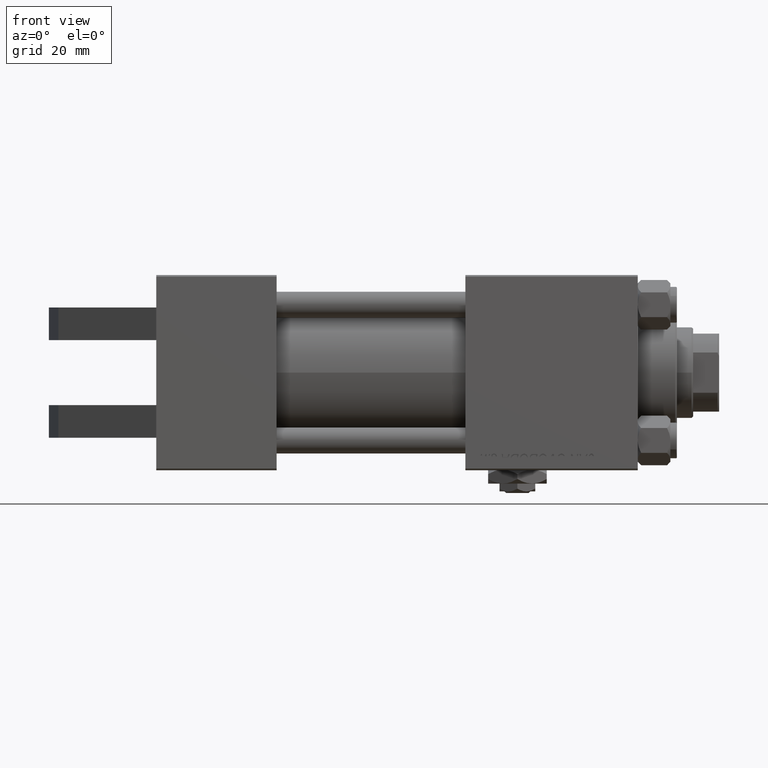
[diagram: clean part render]
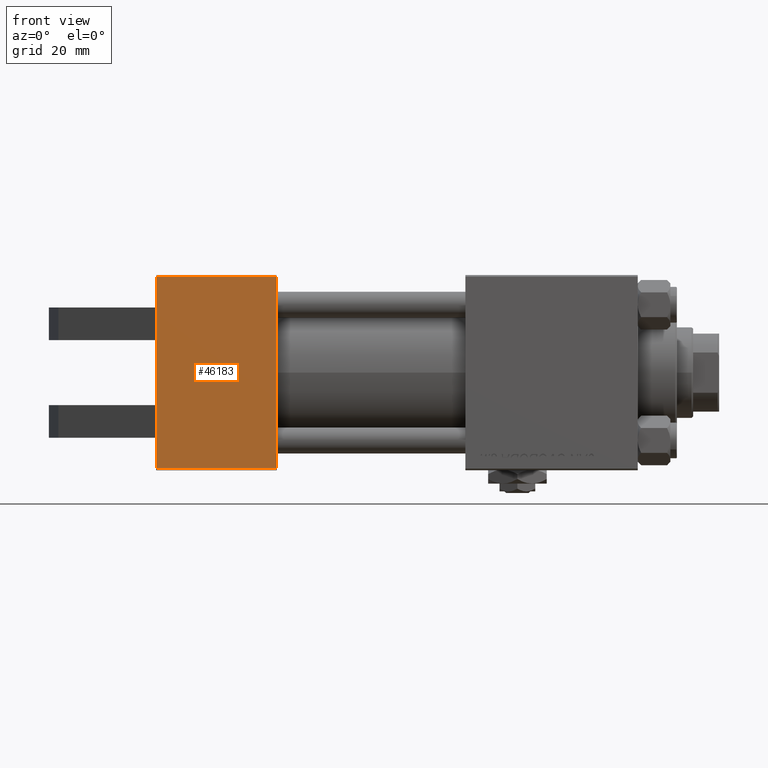
[diagram: same view with one face highlighted and labeled with its STEP entity id]
A machine part, front view. The second image highlights one B-rep face of the part: STEP entity #46183.
In plain terms, the highlighted planar face has unit normal (0, -1, -0).
Its self-contained STEP definition (entity closure, byte-faithful):
#1102 = LINE ( 'NONE', #40673, #13595 ) ;
#1340 = CARTESIAN_POINT ( 'NONE',  ( 37.00000000000000000, 29.99999999999999289, -30.00000000000000000 ) ) ;
#1368 = VECTOR ( 'NONE', #39622, 1000.000000000000000 ) ;
#2062 = ORIENTED_EDGE ( 'NONE', *, *, #39763, .F. ) ;
#2558 = CARTESIAN_POINT ( 'NONE',  ( 0.000000000000000000, 20.00000000000000000, -30.00000000000000711 ) ) ;
#2603 = EDGE_LOOP ( 'NONE', ( #33971, #21463, #24860, #4278, #2062, #28561, #47826, #8935 ) ) ;
#3813 = VECTOR ( 'NONE', #45174, 1000.000000000000000 ) ;
#4278 = ORIENTED_EDGE ( 'NONE', *, *, #23025, .T. ) ;
#5631 = CARTESIAN_POINT ( 'NONE',  ( 0.000000000000000000, 29.49999999999997868, -30.00000000000000000 ) ) ;
#6598 = LINE ( 'NONE', #38083, #24812 ) ;
#7526 = EDGE_CURVE ( 'NONE', #49046, #40208, #24978, .T. ) ;
#7794 = CARTESIAN_POINT ( 'NONE',  ( 37.00000000000000000, 29.99999999999999289, -30.00000000000000000 ) ) ;
#8449 = VERTEX_POINT ( 'NONE', #49749 ) ;
#8935 = ORIENTED_EDGE ( 'NONE', *, *, #7526, .F. ) ;
#11665 = AXIS2_PLACEMENT_3D ( 'NONE', #7794, #23653, #30943 ) ;
#12773 = VERTEX_POINT ( 'NONE', #5631 ) ;
#13446 = LINE ( 'NONE', #29575, #3813 ) ;
#13595 = VECTOR ( 'NONE', #16970, 1000.000000000000000 ) ;
#16970 = DIRECTION ( 'NONE',  ( 1.000000000000000000, 0.000000000000000000, 0.000000000000000000 ) ) ;
#17237 = VERTEX_POINT ( 'NONE', #41853 ) ;
#18166 = DIRECTION ( 'NONE',  ( 0.000000000000000000, -1.000000000000000000, -1.156482317317871725E-16 ) ) ;
#19559 = CARTESIAN_POINT ( 'NONE',  ( 0.000000000000000000, 29.99999999999999289, -30.00000000000000000 ) ) ;
#21066 = CARTESIAN_POINT ( 'NONE',  ( 0.000000000000000000, 20.00000000000000000, -30.00000000000000711 ) ) ;
#21375 = CARTESIAN_POINT ( 'NONE',  ( 37.00000000000000000, 29.49999999999997868, -30.00000000000000000 ) ) ;
#21463 = ORIENTED_EDGE ( 'NONE', *, *, #23173, .T. ) ;
#22067 = CARTESIAN_POINT ( 'NONE',  ( 0.000000000000000000, 29.99999999999999289, -30.00000000000000000 ) ) ;
#23025 = EDGE_CURVE ( 'NONE', #8449, #23213, #47451, .T. ) ;
#23173 = EDGE_CURVE ( 'NONE', #12773, #38551, #1102, .T. ) ;
#23213 = VERTEX_POINT ( 'NONE', #25818 ) ;
#23469 = LINE ( 'NONE', #19559, #1368 ) ;
#23653 = DIRECTION ( 'NONE',  ( 0.000000000000000000, 1.156482317317871725E-16, -1.000000000000000000 ) ) ;
#24290 = CARTESIAN_POINT ( 'NONE',  ( 0.000000000000000000, -29.50000000000001066, -30.00000000000000711 ) ) ;
#24547 = CARTESIAN_POINT ( 'NONE',  ( 0.000000000000000000, -10.00000000000000000, -30.00000000000000711 ) ) ;
#24760 = EDGE_CURVE ( 'NONE', #38551, #8449, #48700, .T. ) ;
#24812 = VECTOR ( 'NONE', #26632, 1000.000000000000000 ) ;
#24860 = ORIENTED_EDGE ( 'NONE', *, *, #24760, .T. ) ;
#24978 = LINE ( 'NONE', #21066, #44414 ) ;
#25818 = CARTESIAN_POINT ( 'NONE',  ( 0.000000000000000000, -29.50000000000000000, -30.00000000000000711 ) ) ;
#26632 = DIRECTION ( 'NONE',  ( -0.000000000000000000, 1.000000000000000000, -0.000000000000000000 ) ) ;
#28561 = ORIENTED_EDGE ( 'NONE', *, *, #38332, .T. ) ;
#29116 = EDGE_CURVE ( 'NONE', #40208, #49495, #23469, .T. ) ;
#29467 = VECTOR ( 'NONE', #18166, 1000.000000000000000 ) ;
#29575 = CARTESIAN_POINT ( 'NONE',  ( 0.000000000000000000, 29.99999999999999289, -30.00000000000000000 ) ) ;
#30148 = DIRECTION ( 'NONE',  ( 0.000000000000000000, -1.000000000000000000, -1.156482317317871725E-16 ) ) ;
#30943 = DIRECTION ( 'NONE',  ( 0.000000000000000000, 1.000000000000000000, 1.156482317317871725E-16 ) ) ;
#33046 = LINE ( 'NONE', #22067, #44781 ) ;
#33971 = ORIENTED_EDGE ( 'NONE', *, *, #49149, .F. ) ;
#35381 = FACE_OUTER_BOUND ( 'NONE', #2603, .T. ) ;
#35515 = DIRECTION ( 'NONE',  ( -1.000000000000000000, 0.000000000000000000, 0.000000000000000000 ) ) ;
#38083 = CARTESIAN_POINT ( 'NONE',  ( 0.000000000000000000, -20.00000000000000000, -30.00000000000000711 ) ) ;
#38332 = EDGE_CURVE ( 'NONE', #17237, #49495, #6598, .T. ) ;
#38551 = VERTEX_POINT ( 'NONE', #21375 ) ;
#39622 = DIRECTION ( 'NONE',  ( 0.000000000000000000, -1.000000000000000000, -1.156482317317871725E-16 ) ) ;
#39763 = EDGE_CURVE ( 'NONE', #17237, #23213, #33046, .T. ) ;
#40208 = VERTEX_POINT ( 'NONE', #40904 ) ;
#40673 = CARTESIAN_POINT ( 'NONE',  ( 37.00000000000000000, 29.49999999999997868, -30.00000000000000000 ) ) ;
#40849 = DIRECTION ( 'NONE',  ( -0.000000000000000000, -1.000000000000000000, -0.000000000000000000 ) ) ;
#40904 = CARTESIAN_POINT ( 'NONE',  ( 0.000000000000000000, 10.00000000000000888, -30.00000000000000355 ) ) ;
#41004 = VECTOR ( 'NONE', #35515, 1000.000000000000000 ) ;
#41853 = CARTESIAN_POINT ( 'NONE',  ( 0.000000000000000000, -20.00000000000000000, -30.00000000000000711 ) ) ;
#43417 = PLANE ( 'NONE',  #11665 ) ;
#44414 = VECTOR ( 'NONE', #40849, 1000.000000000000000 ) ;
#44781 = VECTOR ( 'NONE', #30148, 1000.000000000000000 ) ;
#45174 = DIRECTION ( 'NONE',  ( 0.000000000000000000, -1.000000000000000000, -1.156482317317871725E-16 ) ) ;
#46183 = ADVANCED_FACE ( 'NONE', ( #35381 ), #43417, .T. ) ;
#47451 = LINE ( 'NONE', #24290, #41004 ) ;
#47826 = ORIENTED_EDGE ( 'NONE', *, *, #29116, .F. ) ;
#48700 = LINE ( 'NONE', #1340, #29467 ) ;
#49046 = VERTEX_POINT ( 'NONE', #2558 ) ;
#49149 = EDGE_CURVE ( 'NONE', #12773, #49046, #13446, .T. ) ;
#49495 = VERTEX_POINT ( 'NONE', #24547 ) ;
#49749 = CARTESIAN_POINT ( 'NONE',  ( 37.00000000000000000, -29.50000000000000000, -30.00000000000000711 ) ) ;